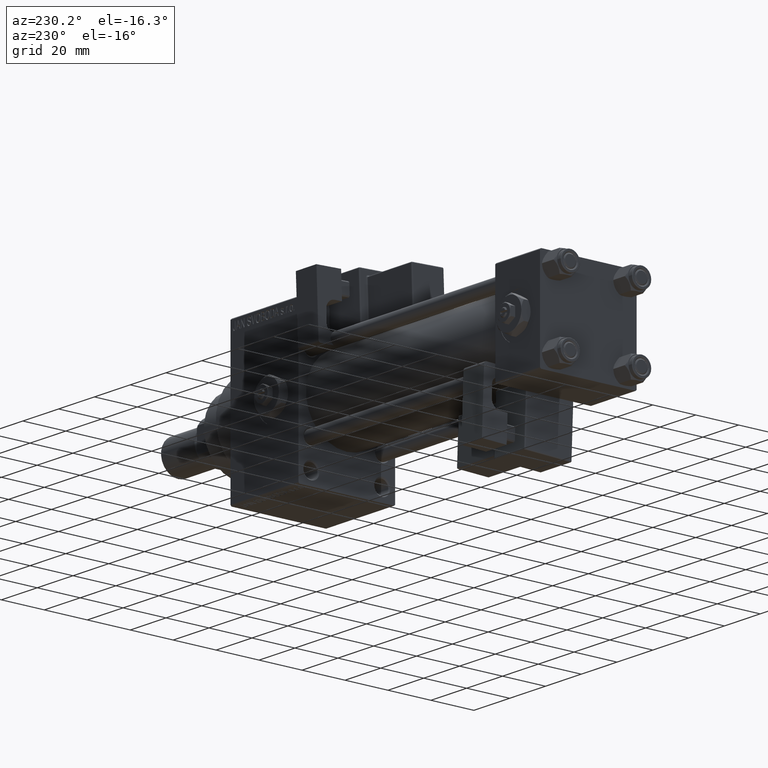
[diagram: clean part render]
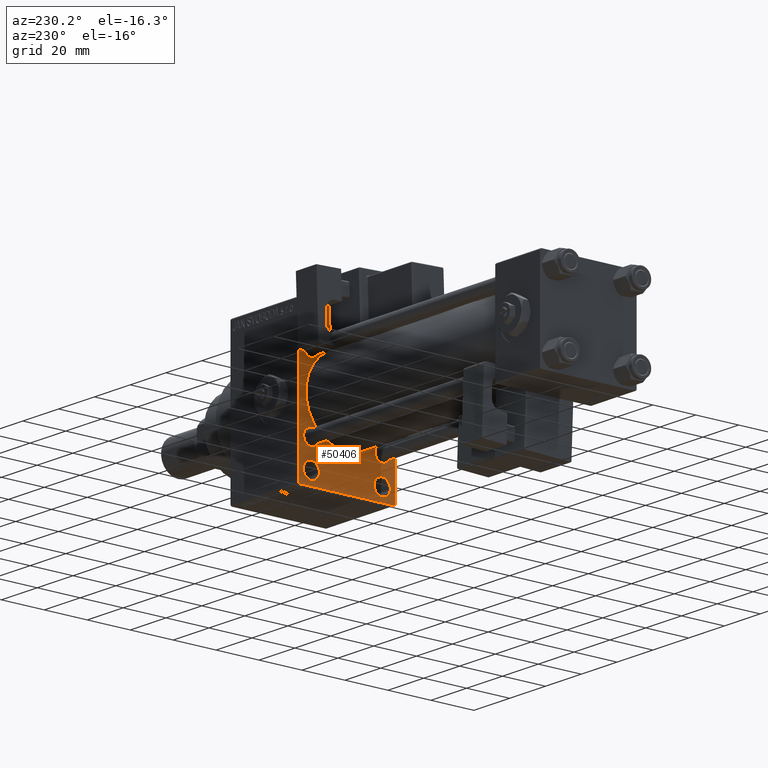
[diagram: same view with one face highlighted and labeled with its STEP entity id]
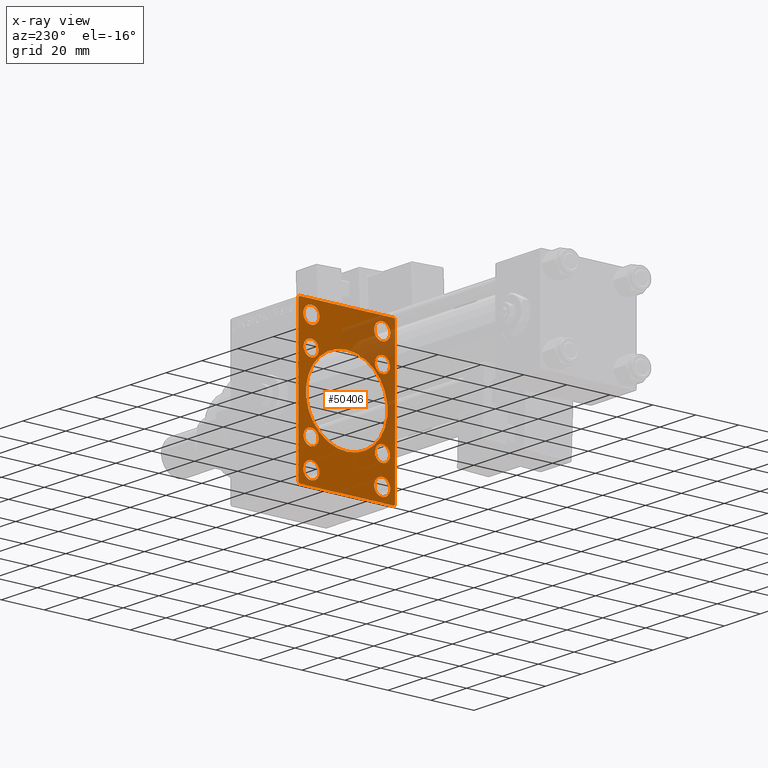
[diagram: x-ray of the same camera — body ghosted, the highlighted face saturated]
A machine part, auxiliary view. The second image highlights one B-rep face of the part: STEP entity #50406.
The next image is the same camera in x-ray: the body ghosted, the highlighted face saturated — about 25% of this face is hidden behind the body in this view.
In plain terms, the highlighted planar face has unit normal (-1, 0, 0).
Its self-contained STEP definition (entity closure, byte-faithful):
#299 = DIRECTION ( 'NONE',  ( 1.000000000000000000, 0.000000000000000000, 0.000000000000000000 ) ) ;
#313 = DIRECTION ( 'NONE',  ( 1.000000000000000000, 0.000000000000000000, 0.000000000000000000 ) ) ;
#545 = VERTEX_POINT ( 'NONE', #30328 ) ;
#889 = CARTESIAN_POINT ( 'NONE',  ( 135.0000000000000000, -16.50000000000000000, 25.25000000000000711 ) ) ;
#1051 = CARTESIAN_POINT ( 'NONE',  ( 135.0000000000000000, -16.59999999999999076, -20.10000000000001208 ) ) ;
#1277 = CARTESIAN_POINT ( 'NONE',  ( 135.0000000000000000, 16.59999999999999787, 13.09999999999999609 ) ) ;
#1358 = DIRECTION ( 'NONE',  ( 1.000000000000000000, 0.000000000000000000, 0.000000000000000000 ) ) ;
#1535 = EDGE_LOOP ( 'NONE', ( #41564, #22521 ) ) ;
#1916 = EDGE_LOOP ( 'NONE', ( #41048, #51834 ) ) ;
#2692 = VERTEX_POINT ( 'NONE', #26900 ) ;
#2789 = CIRCLE ( 'NONE', #43834, 3.750000000000006661 ) ;
#2987 = VERTEX_POINT ( 'NONE', #26576 ) ;
#3092 = VECTOR ( 'NONE', #42943, 1000.000000000000114 ) ;
#3227 = EDGE_CURVE ( 'NONE', #2692, #27925, #42183, .T. ) ;
#3311 = VERTEX_POINT ( 'NONE', #9111 ) ;
#3400 = VECTOR ( 'NONE', #43637, 1000.000000000000000 ) ;
#3572 = AXIS2_PLACEMENT_3D ( 'NONE', #42725, #17808, #18341 ) ;
#3679 = DIRECTION ( 'NONE',  ( 0.000000000000000000, 0.000000000000000000, 1.000000000000000000 ) ) ;
#3778 = DIRECTION ( 'NONE',  ( 0.000000000000000000, 0.000000000000000000, -1.000000000000000000 ) ) ;
#4400 = CIRCLE ( 'NONE', #3572, 3.750000000000006661 ) ;
#4508 = CARTESIAN_POINT ( 'NONE',  ( 135.0000000000000000, 16.50000000000000000, 29.00000000000000355 ) ) ;
#4824 = CARTESIAN_POINT ( 'NONE',  ( 135.0000000000000000, -2.602085213965210642E-15, 0.000000000000000000 ) ) ;
#4960 = EDGE_CURVE ( 'NONE', #545, #30623, #50812, .T. ) ;
#5108 = DIRECTION ( 'NONE',  ( 0.000000000000000000, 0.000000000000000000, 1.000000000000000000 ) ) ;
#5126 = FACE_BOUND ( 'NONE', #1916, .T. ) ;
#5387 = FACE_BOUND ( 'NONE', #18953, .T. ) ;
#5940 = EDGE_LOOP ( 'NONE', ( #35688, #12038, #44895, #21447, #11800, #9092, #26649, #37760 ) ) ;
#6241 = DIRECTION ( 'NONE',  ( 0.000000000000000000, 0.000000000000000000, -1.000000000000000000 ) ) ;
#6439 = LINE ( 'NONE', #27171, #32211 ) ;
#6602 = DIRECTION ( 'NONE',  ( 0.000000000000000000, 0.000000000000000000, 1.000000000000000000 ) ) ;
#6916 = VERTEX_POINT ( 'NONE', #7968 ) ;
#6920 = DIRECTION ( 'NONE',  ( -0.000000000000000000, 0.7071067811865279218, 0.7071067811865671127 ) ) ;
#6929 = CARTESIAN_POINT ( 'NONE',  ( 135.0000000000000000, 16.59999999999999787, -20.10000000000000853 ) ) ;
#7303 = CARTESIAN_POINT ( 'NONE',  ( 135.0000000000000000, -16.50000000000000000, 29.00000000000000711 ) ) ;
#7357 = CARTESIAN_POINT ( 'NONE',  ( 135.0000000000000000, -16.59999999999999076, 16.60000000000000853 ) ) ;
#7514 = DIRECTION ( 'NONE',  ( 0.000000000000000000, 0.000000000000000000, -1.000000000000000000 ) ) ;
#7553 = DIRECTION ( 'NONE',  ( 1.000000000000000000, 0.000000000000000000, 0.000000000000000000 ) ) ;
#7803 = CIRCLE ( 'NONE', #28799, 19.00000000000000000 ) ;
#7968 = CARTESIAN_POINT ( 'NONE',  ( 135.0000000000000000, 16.59999999999999787, 20.10000000000001208 ) ) ;
#8042 = CARTESIAN_POINT ( 'NONE',  ( 135.0000000000000000, -2.602085213965210642E-15, 19.00000000000000000 ) ) ;
#8076 = CARTESIAN_POINT ( 'NONE',  ( 135.0000000000000000, -16.50000000000000000, -25.24999999999998934 ) ) ;
#8649 = EDGE_CURVE ( 'NONE', #19198, #2987, #48459, .T. ) ;
#8749 = CARTESIAN_POINT ( 'NONE',  ( 135.0000000000000000, -16.50000000000000000, 29.00000000000000711 ) ) ;
#8907 = EDGE_LOOP ( 'NONE', ( #20442, #43268 ) ) ;
#9092 = ORIENTED_EDGE ( 'NONE', *, *, #19236, .T. ) ;
#9111 = CARTESIAN_POINT ( 'NONE',  ( 135.0000000000000000, -16.59999999999999076, 20.10000000000001208 ) ) ;
#9316 = CARTESIAN_POINT ( 'NONE',  ( 135.0000000000000000, 16.50000000000000000, -32.75000000000000000 ) ) ;
#9473 = CIRCLE ( 'NONE', #25397, 19.00000000000000000 ) ;
#10021 = EDGE_CURVE ( 'NONE', #10291, #30623, #47570, .T. ) ;
#10025 = CARTESIAN_POINT ( 'NONE',  ( 135.0000000000000000, -16.59999999999999076, 16.60000000000000853 ) ) ;
#10074 = EDGE_CURVE ( 'NONE', #10291, #45432, #32098, .T. ) ;
#10190 = DIRECTION ( 'NONE',  ( 0.000000000000000000, 0.000000000000000000, 1.000000000000000000 ) ) ;
#10224 = DIRECTION ( 'NONE',  ( 0.000000000000000000, 0.000000000000000000, 1.000000000000000000 ) ) ;
#10285 = DIRECTION ( 'NONE',  ( 0.000000000000000000, 0.000000000000000000, 1.000000000000000000 ) ) ;
#10291 = VERTEX_POINT ( 'NONE', #21775 ) ;
#10562 = EDGE_CURVE ( 'NONE', #51828, #545, #47708, .T. ) ;
#11498 = DIRECTION ( 'NONE',  ( 0.000000000000000000, 0.000000000000000000, 1.000000000000000000 ) ) ;
#11800 = ORIENTED_EDGE ( 'NONE', *, *, #45247, .F. ) ;
#12038 = ORIENTED_EDGE ( 'NONE', *, *, #4960, .T. ) ;
#12139 = EDGE_CURVE ( 'NONE', #38625, #40419, #30232, .T. ) ;
#12283 = CARTESIAN_POINT ( 'NONE',  ( 135.0000000000000000, 28.50000000000061817, -28.49999999999904077 ) ) ;
#12454 = DIRECTION ( 'NONE',  ( 1.000000000000000000, 0.000000000000000000, 0.000000000000000000 ) ) ;
#12488 = CARTESIAN_POINT ( 'NONE',  ( 135.0000000000000000, -16.59999999999999076, 13.10000000000000142 ) ) ;
#13020 = FACE_OUTER_BOUND ( 'NONE', #5940, .T. ) ;
#13285 = FACE_BOUND ( 'NONE', #45932, .T. ) ;
#13311 = CARTESIAN_POINT ( 'NONE',  ( 135.0000000000000000, 16.59999999999999787, -13.09999999999999787 ) ) ;
#13883 = AXIS2_PLACEMENT_3D ( 'NONE', #32863, #17109, #32341 ) ;
#14099 = CARTESIAN_POINT ( 'NONE',  ( 135.0000000000000000, -16.50000000000000000, -28.99999999999999289 ) ) ;
#14898 = CARTESIAN_POINT ( 'NONE',  ( 135.0000000000000000, 16.59999999999999787, -16.60000000000000497 ) ) ;
#15019 = CARTESIAN_POINT ( 'NONE',  ( 135.0000000000000000, 21.99999999999999645, 35.00000000000000000 ) ) ;
#15435 = DIRECTION ( 'NONE',  ( 0.000000000000000000, -1.000000000000000000, 0.000000000000000000 ) ) ;
#15510 = VERTEX_POINT ( 'NONE', #29371 ) ;
#15533 = CIRCLE ( 'NONE', #13883, 3.500000000000006661 ) ;
#15680 = EDGE_CURVE ( 'NONE', #33617, #22369, #4400, .T. ) ;
#16044 = CIRCLE ( 'NONE', #27785, 3.500000000000003109 ) ;
#16077 = CARTESIAN_POINT ( 'NONE',  ( 135.0000000000000000, -22.50000000000000355, 35.00000000000000000 ) ) ;
#16163 = AXIS2_PLACEMENT_3D ( 'NONE', #21582, #42019, #10285 ) ;
#16197 = DIRECTION ( 'NONE',  ( 1.000000000000000000, 0.000000000000000000, 0.000000000000000000 ) ) ;
#16342 = CIRCLE ( 'NONE', #45679, 3.750000000000000000 ) ;
#16876 = EDGE_CURVE ( 'NONE', #25559, #31137, #46320, .T. ) ;
#17004 = EDGE_CURVE ( 'NONE', #31137, #25559, #20363, .T. ) ;
#17109 = DIRECTION ( 'NONE',  ( 1.000000000000000000, 0.000000000000000000, 0.000000000000000000 ) ) ;
#17331 = EDGE_CURVE ( 'NONE', #22369, #33617, #2789, .T. ) ;
#17474 = CARTESIAN_POINT ( 'NONE',  ( 135.0000000000000000, 22.49999999999999645, -34.50000000000000000 ) ) ;
#17539 = VERTEX_POINT ( 'NONE', #12488 ) ;
#17547 = CARTESIAN_POINT ( 'NONE',  ( 135.0000000000000000, -16.50000000000000000, 32.75000000000000711 ) ) ;
#17739 = CARTESIAN_POINT ( 'NONE',  ( 135.0000000000000000, 16.50000000000000000, 32.75000000000000000 ) ) ;
#17773 = VERTEX_POINT ( 'NONE', #8042 ) ;
#17808 = DIRECTION ( 'NONE',  ( 1.000000000000000000, 0.000000000000000000, 0.000000000000000000 ) ) ;
#17978 = FACE_BOUND ( 'NONE', #34384, .T. ) ;
#18330 = CARTESIAN_POINT ( 'NONE',  ( 135.0000000000000000, 22.49999999999999645, 35.00000000000000000 ) ) ;
#18341 = DIRECTION ( 'NONE',  ( 0.000000000000000000, 0.000000000000000000, 1.000000000000000000 ) ) ;
#18817 = ORIENTED_EDGE ( 'NONE', *, *, #12139, .T. ) ;
#18953 = EDGE_LOOP ( 'NONE', ( #20499, #49516 ) ) ;
#19198 = VERTEX_POINT ( 'NONE', #17739 ) ;
#19236 = EDGE_CURVE ( 'NONE', #50518, #2692, #6439, .T. ) ;
#19367 = CARTESIAN_POINT ( 'NONE',  ( 135.0000000000000000, -22.00000000000001776, 35.00000000000000000 ) ) ;
#19401 = EDGE_CURVE ( 'NONE', #15510, #17773, #9473, .T. ) ;
#20219 = ORIENTED_EDGE ( 'NONE', *, *, #17004, .T. ) ;
#20363 = CIRCLE ( 'NONE', #49678, 3.750000000000006661 ) ;
#20442 = ORIENTED_EDGE ( 'NONE', *, *, #8649, .T. ) ;
#20499 = ORIENTED_EDGE ( 'NONE', *, *, #43470, .T. ) ;
#20811 = CARTESIAN_POINT ( 'NONE',  ( 135.0000000000000000, -22.50000000000000355, -34.50000000000000000 ) ) ;
#20812 = ORIENTED_EDGE ( 'NONE', *, *, #25193, .T. ) ;
#20866 = DIRECTION ( 'NONE',  ( 1.000000000000000000, 0.000000000000000000, 0.000000000000000000 ) ) ;
#20903 = CARTESIAN_POINT ( 'NONE',  ( 135.0000000000000000, -16.59999999999999076, -13.10000000000000142 ) ) ;
#21045 = DIRECTION ( 'NONE',  ( 0.000000000000000000, 0.000000000000000000, 1.000000000000000000 ) ) ;
#21131 = PLANE ( 'NONE',  #36623 ) ;
#21394 = CARTESIAN_POINT ( 'NONE',  ( 135.0000000000000000, 0.000000000000000000, 0.000000000000000000 ) ) ;
#21447 = ORIENTED_EDGE ( 'NONE', *, *, #10074, .T. ) ;
#21582 = CARTESIAN_POINT ( 'NONE',  ( 135.0000000000000000, 16.50000000000000000, -28.99999999999999289 ) ) ;
#21611 = DIRECTION ( 'NONE',  ( 1.000000000000000000, 0.000000000000000000, 0.000000000000000000 ) ) ;
#21775 = CARTESIAN_POINT ( 'NONE',  ( 135.0000000000000000, -22.50000000000000355, 34.50000000000000000 ) ) ;
#22322 = ORIENTED_EDGE ( 'NONE', *, *, #42879, .T. ) ;
#22369 = VERTEX_POINT ( 'NONE', #23212 ) ;
#22423 = AXIS2_PLACEMENT_3D ( 'NONE', #7357, #23610, #44336 ) ;
#22508 = EDGE_LOOP ( 'NONE', ( #31309, #18817 ) ) ;
#22521 = ORIENTED_EDGE ( 'NONE', *, *, #17331, .T. ) ;
#23212 = CARTESIAN_POINT ( 'NONE',  ( 135.0000000000000000, -16.50000000000000000, -32.75000000000000000 ) ) ;
#23218 = VERTEX_POINT ( 'NONE', #17547 ) ;
#23610 = DIRECTION ( 'NONE',  ( 1.000000000000000000, 0.000000000000000000, 0.000000000000000000 ) ) ;
#24809 = CARTESIAN_POINT ( 'NONE',  ( 135.0000000000000000, 16.59999999999999787, 16.60000000000000497 ) ) ;
#24998 = ORIENTED_EDGE ( 'NONE', *, *, #36304, .T. ) ;
#25095 = DIRECTION ( 'NONE',  ( -0.000000000000000000, 0.000000000000000000, 1.000000000000000000 ) ) ;
#25193 = EDGE_CURVE ( 'NONE', #23218, #35865, #16342, .T. ) ;
#25338 = FACE_BOUND ( 'NONE', #8907, .T. ) ;
#25397 = AXIS2_PLACEMENT_3D ( 'NONE', #4824, #12454, #3778 ) ;
#25559 = VERTEX_POINT ( 'NONE', #9316 ) ;
#26253 = CIRCLE ( 'NONE', #41321, 3.750000000000000000 ) ;
#26576 = CARTESIAN_POINT ( 'NONE',  ( 135.0000000000000000, 16.50000000000000000, 25.25000000000000355 ) ) ;
#26649 = ORIENTED_EDGE ( 'NONE', *, *, #3227, .T. ) ;
#26900 = CARTESIAN_POINT ( 'NONE',  ( 135.0000000000000000, 22.49999999999999645, 34.50000000000000000 ) ) ;
#27171 = CARTESIAN_POINT ( 'NONE',  ( 135.0000000000000000, 28.49999999999999645, 28.49999999999999645 ) ) ;
#27202 = CARTESIAN_POINT ( 'NONE',  ( 135.0000000000000000, -28.49999999999999645, -28.49999999999999645 ) ) ;
#27328 = DIRECTION ( 'NONE',  ( 1.000000000000000000, 0.000000000000000000, 0.000000000000000000 ) ) ;
#27785 = AXIS2_PLACEMENT_3D ( 'NONE', #10025, #49625, #6602 ) ;
#27925 = VERTEX_POINT ( 'NONE', #17474 ) ;
#27975 = DIRECTION ( 'NONE',  ( 1.000000000000000000, 0.000000000000000000, 0.000000000000000000 ) ) ;
#28513 = VECTOR ( 'NONE', #15435, 1000.000000000000000 ) ;
#28758 = AXIS2_PLACEMENT_3D ( 'NONE', #44486, #39760, #39515 ) ;
#28799 = AXIS2_PLACEMENT_3D ( 'NONE', #31391, #27975, #7514 ) ;
#29024 = DIRECTION ( 'NONE',  ( -1.000000000000000000, 0.000000000000000000, -0.000000000000000000 ) ) ;
#29045 = EDGE_CURVE ( 'NONE', #41313, #31680, #44136, .T. ) ;
#29371 = CARTESIAN_POINT ( 'NONE',  ( 135.0000000000000000, -2.752562955852396712E-16, -19.00000000000000000 ) ) ;
#29795 = FACE_BOUND ( 'NONE', #22508, .T. ) ;
#30232 = CIRCLE ( 'NONE', #36947, 3.500000000000006661 ) ;
#30328 = CARTESIAN_POINT ( 'NONE',  ( 135.0000000000000000, -21.99999999999998934, -35.00000000000000000 ) ) ;
#30623 = VERTEX_POINT ( 'NONE', #20811 ) ;
#30633 = VECTOR ( 'NONE', #44287, 1000.000000000000000 ) ;
#30666 = CARTESIAN_POINT ( 'NONE',  ( 135.0000000000000000, 22.00000000000002132, -35.00000000000000000 ) ) ;
#30716 = EDGE_LOOP ( 'NONE', ( #24998, #30983 ) ) ;
#30909 = AXIS2_PLACEMENT_3D ( 'NONE', #36153, #16197, #32223 ) ;
#30983 = ORIENTED_EDGE ( 'NONE', *, *, #51683, .T. ) ;
#31137 = VERTEX_POINT ( 'NONE', #42496 ) ;
#31309 = ORIENTED_EDGE ( 'NONE', *, *, #43480, .T. ) ;
#31391 = CARTESIAN_POINT ( 'NONE',  ( 135.0000000000000000, -2.602085213965210642E-15, 0.000000000000000000 ) ) ;
#31517 = AXIS2_PLACEMENT_3D ( 'NONE', #37331, #1358, #33910 ) ;
#31532 = VECTOR ( 'NONE', #6241, 1000.000000000000000 ) ;
#31680 = VERTEX_POINT ( 'NONE', #6929 ) ;
#32098 = LINE ( 'NONE', #47303, #49488 ) ;
#32211 = VECTOR ( 'NONE', #42907, 1000.000000000000114 ) ;
#32223 = DIRECTION ( 'NONE',  ( 0.000000000000000000, 0.000000000000000000, 1.000000000000000000 ) ) ;
#32341 = DIRECTION ( 'NONE',  ( 0.000000000000000000, 0.000000000000000000, 1.000000000000000000 ) ) ;
#32863 = CARTESIAN_POINT ( 'NONE',  ( 135.0000000000000000, 16.59999999999999787, -16.60000000000000497 ) ) ;
#32954 = FACE_BOUND ( 'NONE', #1535, .T. ) ;
#33617 = VERTEX_POINT ( 'NONE', #8076 ) ;
#33897 = VECTOR ( 'NONE', #47740, 1000.000000000000000 ) ;
#33910 = DIRECTION ( 'NONE',  ( 0.000000000000000000, 0.000000000000000000, 1.000000000000000000 ) ) ;
#33957 = CIRCLE ( 'NONE', #38979, 3.500000000000006661 ) ;
#34296 = EDGE_LOOP ( 'NONE', ( #20219, #44543 ) ) ;
#34384 = EDGE_LOOP ( 'NONE', ( #20812, #22322 ) ) ;
#34680 = CARTESIAN_POINT ( 'NONE',  ( 135.0000000000000000, 16.50000000000000000, -28.99999999999999289 ) ) ;
#34785 = CIRCLE ( 'NONE', #49075, 3.750000000000003553 ) ;
#35432 = LINE ( 'NONE', #48269, #33897 ) ;
#35688 = ORIENTED_EDGE ( 'NONE', *, *, #10562, .T. ) ;
#35865 = VERTEX_POINT ( 'NONE', #889 ) ;
#36153 = CARTESIAN_POINT ( 'NONE',  ( 135.0000000000000000, 16.50000000000000000, 29.00000000000000355 ) ) ;
#36156 = LINE ( 'NONE', #12283, #30633 ) ;
#36304 = EDGE_CURVE ( 'NONE', #3311, #17539, #16044, .T. ) ;
#36623 = AXIS2_PLACEMENT_3D ( 'NONE', #21394, #29024, #25095 ) ;
#36947 = AXIS2_PLACEMENT_3D ( 'NONE', #38394, #21611, #38122 ) ;
#37331 = CARTESIAN_POINT ( 'NONE',  ( 135.0000000000000000, 16.59999999999999787, 16.60000000000000497 ) ) ;
#37666 = FACE_BOUND ( 'NONE', #34296, .T. ) ;
#37760 = ORIENTED_EDGE ( 'NONE', *, *, #48005, .T. ) ;
#38122 = DIRECTION ( 'NONE',  ( 0.000000000000000000, 0.000000000000000000, 1.000000000000000000 ) ) ;
#38394 = CARTESIAN_POINT ( 'NONE',  ( 135.0000000000000000, -16.59999999999999076, -16.60000000000000853 ) ) ;
#38625 = VERTEX_POINT ( 'NONE', #1051 ) ;
#38979 = AXIS2_PLACEMENT_3D ( 'NONE', #24809, #20866, #5108 ) ;
#39515 = DIRECTION ( 'NONE',  ( 0.000000000000000000, 0.000000000000000000, 1.000000000000000000 ) ) ;
#39760 = DIRECTION ( 'NONE',  ( 1.000000000000000000, 0.000000000000000000, 0.000000000000000000 ) ) ;
#40419 = VERTEX_POINT ( 'NONE', #20903 ) ;
#41048 = ORIENTED_EDGE ( 'NONE', *, *, #29045, .T. ) ;
#41313 = VERTEX_POINT ( 'NONE', #13311 ) ;
#41321 = AXIS2_PLACEMENT_3D ( 'NONE', #8749, #313, #10224 ) ;
#41564 = ORIENTED_EDGE ( 'NONE', *, *, #15680, .T. ) ;
#42019 = DIRECTION ( 'NONE',  ( 1.000000000000000000, 0.000000000000000000, 0.000000000000000000 ) ) ;
#42163 = DIRECTION ( 'NONE',  ( 1.000000000000000000, 0.000000000000000000, 0.000000000000000000 ) ) ;
#42183 = LINE ( 'NONE', #18330, #31532 ) ;
#42496 = CARTESIAN_POINT ( 'NONE',  ( 135.0000000000000000, 16.50000000000000000, -25.24999999999998934 ) ) ;
#42725 = CARTESIAN_POINT ( 'NONE',  ( 135.0000000000000000, -16.50000000000000000, -28.99999999999999289 ) ) ;
#42879 = EDGE_CURVE ( 'NONE', #35865, #23218, #26253, .T. ) ;
#42907 = DIRECTION ( 'NONE',  ( 0.000000000000000000, 0.7071067811865474617, -0.7071067811865474617 ) ) ;
#42943 = DIRECTION ( 'NONE',  ( 0.000000000000000000, -0.7071067811865474617, 0.7071067811865474617 ) ) ;
#42972 = DIRECTION ( 'NONE',  ( 1.000000000000000000, 0.000000000000000000, 0.000000000000000000 ) ) ;
#43268 = ORIENTED_EDGE ( 'NONE', *, *, #47369, .T. ) ;
#43270 = CARTESIAN_POINT ( 'NONE',  ( 135.0000000000000000, 22.49999999999999645, -35.00000000000000000 ) ) ;
#43356 = CIRCLE ( 'NONE', #22423, 3.500000000000003109 ) ;
#43470 = EDGE_CURVE ( 'NONE', #17773, #15510, #7803, .T. ) ;
#43480 = EDGE_CURVE ( 'NONE', #40419, #38625, #51358, .T. ) ;
#43637 = DIRECTION ( 'NONE',  ( 0.000000000000000000, 0.000000000000000000, -1.000000000000000000 ) ) ;
#43834 = AXIS2_PLACEMENT_3D ( 'NONE', #14099, #42163, #49773 ) ;
#44136 = CIRCLE ( 'NONE', #47486, 3.500000000000006661 ) ;
#44287 = DIRECTION ( 'NONE',  ( -0.000000000000000000, -0.7071067811865279218, -0.7071067811865671127 ) ) ;
#44336 = DIRECTION ( 'NONE',  ( 0.000000000000000000, 0.000000000000000000, 1.000000000000000000 ) ) ;
#44486 = CARTESIAN_POINT ( 'NONE',  ( 135.0000000000000000, -16.59999999999999076, -16.60000000000000853 ) ) ;
#44543 = ORIENTED_EDGE ( 'NONE', *, *, #16876, .T. ) ;
#44895 = ORIENTED_EDGE ( 'NONE', *, *, #10021, .F. ) ;
#45247 = EDGE_CURVE ( 'NONE', #50518, #45432, #35432, .T. ) ;
#45314 = ORIENTED_EDGE ( 'NONE', *, *, #46956, .T. ) ;
#45432 = VERTEX_POINT ( 'NONE', #19367 ) ;
#45679 = AXIS2_PLACEMENT_3D ( 'NONE', #7303, #7553, #11498 ) ;
#45932 = EDGE_LOOP ( 'NONE', ( #45314, #51928 ) ) ;
#46320 = CIRCLE ( 'NONE', #16163, 3.750000000000006661 ) ;
#46956 = EDGE_CURVE ( 'NONE', #6916, #51768, #33957, .T. ) ;
#47303 = CARTESIAN_POINT ( 'NONE',  ( 135.0000000000000000, -28.50000000000062883, 28.49999999999905143 ) ) ;
#47369 = EDGE_CURVE ( 'NONE', #2987, #19198, #34785, .T. ) ;
#47428 = EDGE_CURVE ( 'NONE', #31680, #41313, #15533, .T. ) ;
#47486 = AXIS2_PLACEMENT_3D ( 'NONE', #14898, #42972, #10190 ) ;
#47570 = LINE ( 'NONE', #16077, #3400 ) ;
#47708 = LINE ( 'NONE', #43270, #28513 ) ;
#47740 = DIRECTION ( 'NONE',  ( 0.000000000000000000, -1.000000000000000000, 0.000000000000000000 ) ) ;
#48005 = EDGE_CURVE ( 'NONE', #27925, #51828, #36156, .T. ) ;
#48269 = CARTESIAN_POINT ( 'NONE',  ( 135.0000000000000000, 22.49999999999999645, 35.00000000000000000 ) ) ;
#48459 = CIRCLE ( 'NONE', #30909, 3.750000000000003553 ) ;
#48609 = EDGE_CURVE ( 'NONE', #51768, #6916, #50774, .T. ) ;
#48941 = FACE_BOUND ( 'NONE', #30716, .T. ) ;
#49075 = AXIS2_PLACEMENT_3D ( 'NONE', #4508, #299, #21045 ) ;
#49488 = VECTOR ( 'NONE', #6920, 1000.000000000000000 ) ;
#49516 = ORIENTED_EDGE ( 'NONE', *, *, #19401, .T. ) ;
#49625 = DIRECTION ( 'NONE',  ( 1.000000000000000000, 0.000000000000000000, 0.000000000000000000 ) ) ;
#49678 = AXIS2_PLACEMENT_3D ( 'NONE', #34680, #27328, #3679 ) ;
#49773 = DIRECTION ( 'NONE',  ( 0.000000000000000000, 0.000000000000000000, 1.000000000000000000 ) ) ;
#50406 = ADVANCED_FACE ( 'NONE', ( #17978, #32954, #37666, #25338, #48941, #13285, #5126, #29795, #5387, #13020 ), #21131, .T. ) ;
#50518 = VERTEX_POINT ( 'NONE', #15019 ) ;
#50774 = CIRCLE ( 'NONE', #31517, 3.500000000000006661 ) ;
#50812 = LINE ( 'NONE', #27202, #3092 ) ;
#51358 = CIRCLE ( 'NONE', #28758, 3.500000000000006661 ) ;
#51683 = EDGE_CURVE ( 'NONE', #17539, #3311, #43356, .T. ) ;
#51768 = VERTEX_POINT ( 'NONE', #1277 ) ;
#51828 = VERTEX_POINT ( 'NONE', #30666 ) ;
#51834 = ORIENTED_EDGE ( 'NONE', *, *, #47428, .T. ) ;
#51928 = ORIENTED_EDGE ( 'NONE', *, *, #48609, .T. ) ;